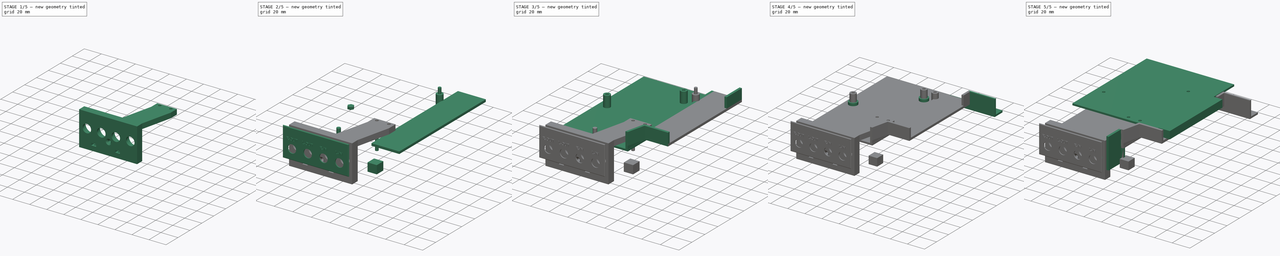
[diagram: build sequence overview — one tinted view per stage of 5, left to right]
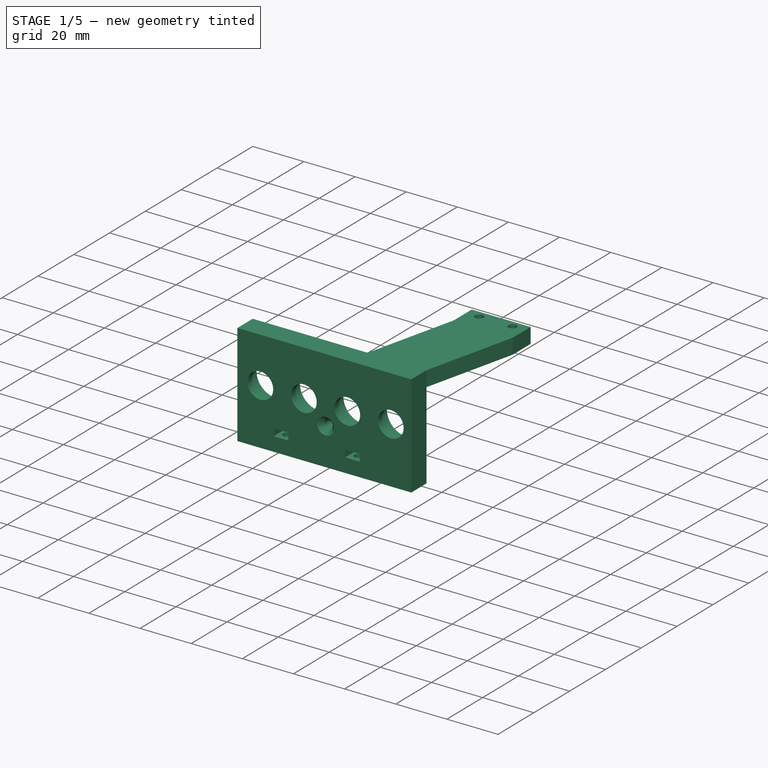
[diagram: stage 1 of 5 — iso view after this stage's code; geometry added in this stage tinted green]
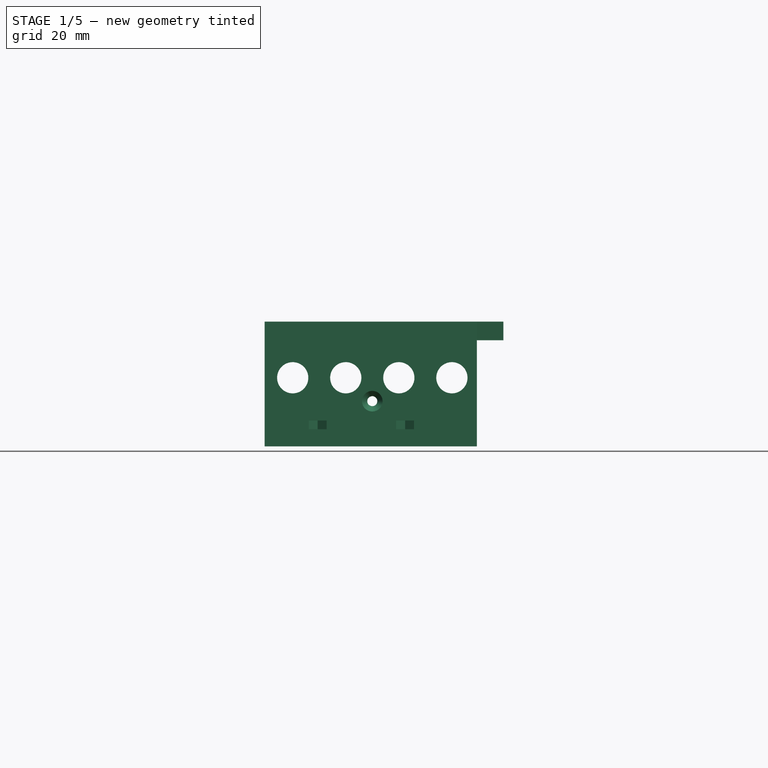
[diagram: stage 1 of 5 — front view after this stage's code; geometry added in this stage tinted green]
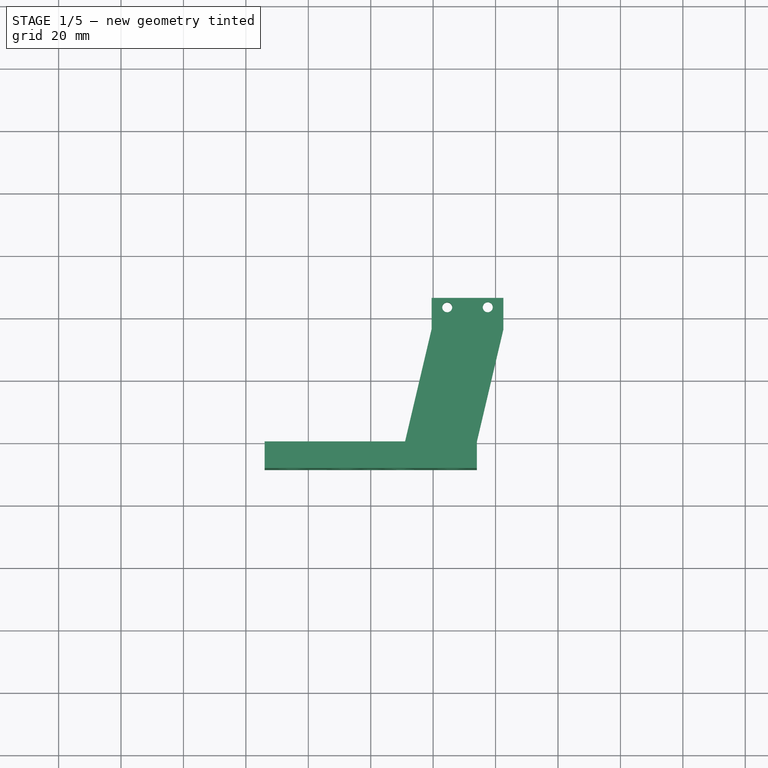
[diagram: stage 1 of 5 — top view after this stage's code; geometry added in this stage tinted green]
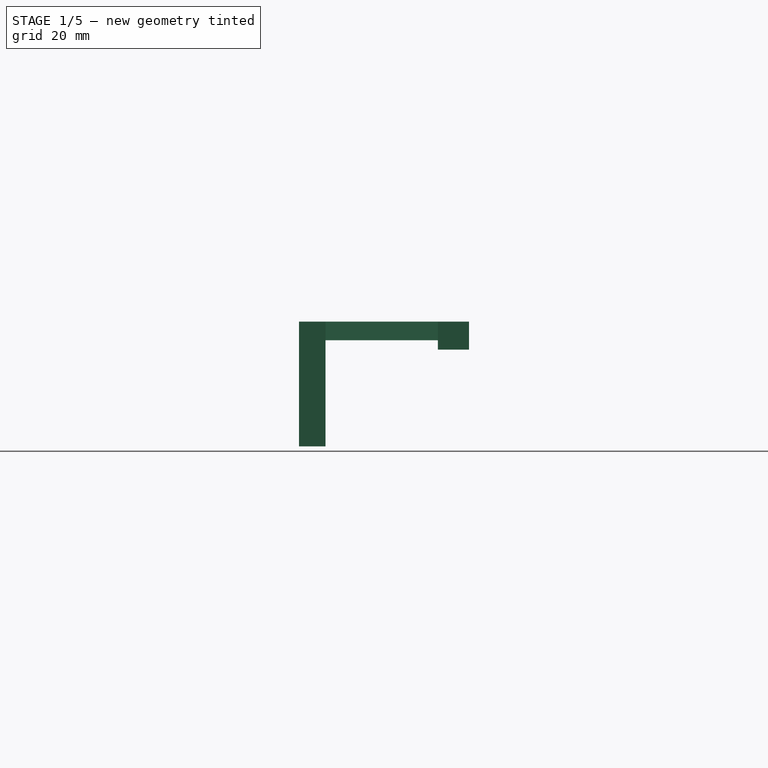
[diagram: stage 1 of 5 — right view after this stage's code; geometry added in this stage tinted green]
FCSTD DOCUMENT  (FreeCAD 0.16R6712 (Git))
Label: assembly
License: All rights reserved
LicenseURL: http://en.wikipedia.org/wiki/All_rights_reserved
objects: Part::Part2DObjectPython×19, Sketcher::SketchObject×18, Part::Cut×18, Part::Extrusion×15, PartDesign::Pad×11, Part::Cylinder×10, PartDesign::Pocket×7, Part::Fuse×7, Part::Box×6, Part::MultiFuse×3, Part::Chamfer×2, App::DocumentObjectGroup×1, PartDesign::Chamfer×1
note: 135 computed .brp shape members not serialized (recipe doc carries the construction recipe); baked Part::Feature solids carry a one-line shape summary decoded from their .brp

FEATURE [Sketcher::SketchObject] Sketch
  Placement = pos=(0,-8.5,0) rot=(1,0,0;1.5708rad)
  sketch-geometry (11):
    g0: LineSegment StartX=74 StartY=3.5 StartZ=0 EndX=74 EndY=43.5 EndZ=0
    g1: Circle CenterX=15 CenterY=25.5 CenterZ=0 NormalX=0 NormalY=0 NormalZ=1 Radius=5
    g2: Circle CenterX=32 CenterY=25.5 CenterZ=0 NormalX=0 NormalY=0 NormalZ=1 Radius=5
    g3: Circle CenterX=49 CenterY=25.5 CenterZ=0 NormalX=0 NormalY=0 NormalZ=1 Radius=5
    g4: Circle CenterX=66 CenterY=25.5 CenterZ=0 NormalX=0 NormalY=0 NormalZ=1 Radius=5
    g5: LineSegment [constr] StartX=15 StartY=25.5 StartZ=0 EndX=32 EndY=25.5 EndZ=0
    g6: LineSegment [constr] StartX=32 StartY=25.5 StartZ=0 EndX=49 EndY=25.5 EndZ=0
    g7: LineSegment [constr] StartX=49 StartY=25.5 StartZ=0 EndX=66 EndY=25.5 EndZ=0
    g8: LineSegment StartX=74 StartY=43.5 StartZ=0 EndX=6 EndY=43.5 EndZ=0
    g9: LineSegment StartX=6 StartY=43.5 StartZ=0 EndX=6 EndY=3.5 EndZ=0
    g10: LineSegment StartX=6 StartY=3.5 StartZ=0 EndX=74 EndY=3.5 EndZ=0
  constraints (29):
    c: Vertical(g0)
    c: Radius(g1) = 5
    c: Equal(g1,g2)
    c: Equal(g1,g3)
    c: Equal(g1,g4)
    c: Coincident(g5,g1)
    c: Coincident(g5,g2)
    c: Horizontal(g5)
    c: Coincident(g5,g6)
    c: Horizontal(g6)
    c: Coincident(g6,g7)
    c: Coincident(g7,g4)
    c: Horizontal(g7)
    c: Distance(g5) = 17
    c: Distance(g6) = 17
    c: Distance(g7) = 17
    c: DistanceY(g-1,g1) = 25.5
    c: DistanceX(g-1,g1) = 15
    c: Coincident(g8,g0)
    c: Horizontal(g8)
    c: Coincident(g8,g9)
    c: Vertical(g9)
    c: DistanceX(g-1,g9) = 6
    c: DistanceY(g-1,g9) = 3.5
    c: Coincident(g10,g9)
    c: Coincident(g10,g0)
    c: Horizontal(g10)
    c: Coincident(g3,g6)
    c: DistanceY(g-1,g8) = 43.5
FEATURE [PartDesign::Pad] Pad
  Length = 8.5
  Length2 = 100
  Placement = pos=(0,-8.5,0) rot=(1,0,0;1.5708rad)
  Reversed = true
  Sketch = -> Sketch
  Type = 0
FEATURE [Sketcher::SketchObject] Sketch001
  ExternalGeometry = -> [Pad]
  Placement = pos=(0,0,0) rot=(-1,0,0;1.5708rad)
  Support = -> Pad [Face10]
  sketch-geometry (4):
    g0: Circle CenterX=15 CenterY=-25.5 CenterZ=0 NormalX=0 NormalY=0 NormalZ=1 Radius=7.5
    g1: Circle CenterX=32 CenterY=-25.5 CenterZ=0 NormalX=0 NormalY=0 NormalZ=1 Radius=7.5
    g2: Circle CenterX=49 CenterY=-25.5 CenterZ=0 NormalX=0 NormalY=0 NormalZ=1 Radius=7.5
    g3: Circle CenterX=66 CenterY=-25.5 CenterZ=0 NormalX=0 NormalY=0 NormalZ=1 Radius=7.5
  constraints (8):
    c: Coincident(g0,g-3)
    c: Coincident(g1,g-4)
    c: Coincident(g2,g-5)
    c: Coincident(g3,g-6)
    c: Radius(g0) = 7.5
    c: Equal(g0,g1)
    c: Equal(g0,g2)
    c: Equal(g0,g3)
FEATURE [PartDesign::Pocket] Pocket
  Length = 6
  Placement = pos=(0,-8.5,0) rot=(1,0,0;1.5708rad)
  Sketch = -> Sketch001
  Type = 0
FEATURE [Sketcher::SketchObject] Sketch002
  Placement = pos=(0,-8.5,3.5) rot=(1,0,0;3.14159rad)
  Support = -> Pocket [Face2]
  sketch-geometry (3):
    g0: Circle CenterX=51 CenterY=-3.5 CenterZ=0 NormalX=0 NormalY=0 NormalZ=1 Radius=1.6
    g1: Circle CenterX=23 CenterY=-3.5 CenterZ=0 NormalX=0 NormalY=0 NormalZ=1 Radius=1.6
    g2: LineSegment [constr] StartX=23 StartY=-3.5 StartZ=0 EndX=51 EndY=-3.5 EndZ=0
  constraints (8):
    c: DistanceX(g0) = 51
    c: Radius(g0) = 1.6
    c: Radius(g1) = 1.6
    c: DistanceX(g1,g0) = 28
    c: Coincident(g2,g1)
    c: Coincident(g2,g0)
    c: Horizontal(g2)
    c: DistanceY(g1,g-1) = 3.5
FEATURE [PartDesign::Pocket] Pocket001
  Length = 10
  Placement = pos=(0,-8.5,0) rot=(1,0,0;1.5708rad)
  Sketch = -> Sketch002
  Type = 0
FEATURE [Part::Part2DObjectPython] Polygon001  # Draft 2D object (typed FeaturePython)
  ChamferSize = 0
  DrawMode = 0
  FacesNumber = 6
  FilletRadius = 0
  MakeFace = true
  Placement = pos=(9.76616,-38.7357,0) rot=(0,0,1;0.523599rad)
  Radius = 3.3
FEATURE [Part::Part2DObjectPython] Rectangle001  # Draft 2D object (typed FeaturePython)
  ChamferSize = 0
  Columns = 1
  FilletRadius = 0
  Height = -5
  Length = 5.71577
  MakeFace = true
  Placement = pos=(6.90828,-40.3857,0) rot=(0,0,1;0rad)
  Rows = 1
FEATURE [Part::Part2DObjectPython] Fusion001  # Draft 2D object (typed FeaturePython)
  Base = -> Rectangle001
  ChamferSize = 0
  Closed = false
  End = (12.624,-37.0857,0)
  FilletRadius = 0
  Length = 0
  MakeFace = true
  Points = (7) [(12.624,-40.3857,0),(12.624,-45.3857,0),(6.90828,-45.3857,0),(6.90828,-40.3857,0),(6.90828,-37.0857,0),(9.76616,-35.4357,0),(12.624,-37.0857,0)]
  Start = (12.624,-40.3857,0)
  Subdivisions = 0
  Tool = -> Polygon001
FEATURE [Part::Extrusion] Extrude001
  Base = -> Fusion001
  Dir = (0,0,2.8)
  Placement = pos=(41.2338,33.7357,9) rot=(0,0,1;0rad)
  Solid = false
FEATURE [Part::Cut] Cut
  Base = -> Pocket001
  Tool = -> Extrude001
FEATURE [Part::Part2DObjectPython] Polygon  # Draft 2D object (typed FeaturePython)
  ChamferSize = 0
  DrawMode = 0
  FacesNumber = 6
  FilletRadius = 0
  MakeFace = true
  Placement = pos=(9.76616,-38.7357,0) rot=(0,0,1;0.523599rad)
  Radius = 3.3
FEATURE [Part::Part2DObjectPython] Rectangle  # Draft 2D object (typed FeaturePython)
  ChamferSize = 0
  Columns = 1
  FilletRadius = 0
  Height = -5
  Length = 5.71577
  MakeFace = true
  Placement = pos=(6.90828,-40.3857,0) rot=(0,0,1;0rad)
  Rows = 1
FEATURE [Part::Part2DObjectPython] Fusion  # Draft 2D object (typed FeaturePython)
  Base = -> Rectangle
  ChamferSize = 0
  Closed = false
  End = (12.624,-37.0857,0)
  FilletRadius = 0
  Length = 0
  MakeFace = true
  Points = (7) [(12.624,-40.3857,0),(12.624,-45.3857,0),(6.90828,-45.3857,0),(6.90828,-40.3857,0),(6.90828,-37.0857,0),(9.76616,-35.4357,0),(12.624,-37.0857,0)]
  Start = (12.624,-40.3857,0)
  Subdivisions = 0
  Tool = -> Polygon
FEATURE [Part::Extrusion] Extrude
  Base = -> Fusion
  Dir = (0,0,2.8)
  Placement = pos=(13.2338,33.7357,9) rot=(0,0,1;0rad)
  Solid = false
FEATURE [Part::Cut] Cut001
  Base = -> Cut
  Tool = -> Extrude
FEATURE [Sketcher::SketchObject] Sketch003
  ExternalGeometry = -> [Cut001]
  Placement = pos=(0,0,43.5) rot=(0,0,1;0rad)
  Support = -> Cut001 [Face3]
  sketch-geometry (9):
    g0: Circle CenterX=64.5 CenterY=43 CenterZ=0 NormalX=0 NormalY=0 NormalZ=1 Radius=1.6
    g1: Circle CenterX=77.5 CenterY=43 CenterZ=0 NormalX=0 NormalY=0 NormalZ=1 Radius=1.6
    g2: LineSegment [constr] StartX=64.5 StartY=43 StartZ=0 EndX=77.5 EndY=43 EndZ=0
    g3: LineSegment StartX=74 StartY=0 StartZ=0 EndX=82.5 EndY=36 EndZ=0
    g4: LineSegment StartX=82.5 StartY=36 StartZ=0 EndX=82.5 EndY=46 EndZ=0
    g5: LineSegment StartX=82.5 StartY=46 StartZ=0 EndX=59.5 EndY=46 EndZ=0
    g6: LineSegment StartX=59.5 StartY=46 StartZ=0 EndX=59.5 EndY=36 EndZ=0
    g7: LineSegment StartX=59.5 StartY=36 StartZ=0 EndX=51 EndY=0 EndZ=0
    g8: LineSegment StartX=51 StartY=0 StartZ=0 EndX=74 EndY=0 EndZ=0
  constraints (25):
    c: DistanceX(g0) = 64.5
    c: DistanceY(g0) = 43
    c: Radius(g0) = 1.6
    c: Radius(g1) = 1.6
    c: Coincident(g2,g0)
    c: Coincident(g2,g1)
    c: Horizontal(g2)
    c: Distance(g2) = 13
    c: Coincident(g-3,g3)
    c: Coincident(g3,g4)
    c: Vertical(g4)
    c: Coincident(g4,g5)
    c: Horizontal(g5)
    c: Coincident(g5,g6)
    c: Vertical(g6)
    c: Coincident(g6,g7)
    c: PointOnObject(g7,g-3)
    c: DistanceY(g0,g5) = 3
    c: DistanceX(g5,g0) = 5
    c: DistanceX(g1,g4) = 5
    c: Parallel(g7,g3)
    c: DistanceY(g3,g1) = 7
    c: DistanceY(g6,g1) = 7
    c: Coincident(g8,g7)
    c: Coincident(g8,g3)
FEATURE [PartDesign::Pad] Pad001
  Length = 6
  Length2 = 100
  Reversed = true
  Sketch = -> Sketch003
  Type = 0
FEATURE [Sketcher::SketchObject] Sketch004
  ExternalGeometry = -> [Pad001]
  Placement = pos=(0,0,37.5) rot=(1,0,0;3.14159rad)
  Support = -> Pad001 [Face5]
  sketch-geometry (5):
    g0: LineSegment StartX=59.5 StartY=-36 StartZ=0 EndX=71 EndY=-36 EndZ=0
    g1: LineSegment StartX=71 StartY=-36 StartZ=0 EndX=71 EndY=-46 EndZ=0
    g2: LineSegment StartX=71 StartY=-46 StartZ=0 EndX=59.5 EndY=-46 EndZ=0
    g3: LineSegment StartX=59.5 StartY=-46 StartZ=0 EndX=59.5 EndY=-36 EndZ=0
    g4: Circle CenterX=64.5 CenterY=-43 CenterZ=0 NormalX=0 NormalY=0 NormalZ=1 Radius=1.6
  constraints (13):
    c: Coincident(g0,g1)
    c: Coincident(g1,g2)
    c: Coincident(g2,g3)
    c: Coincident(g3,g0)
    c: Horizontal(g0)
    c: Horizontal(g2)
    c: Vertical(g1)
    c: Vertical(g3)
    c: Coincident(g0,g-4)
    c: PointOnObject(g1,g-5)
    c: DistanceX(g-3,g0) = 6.5
    c: Coincident(g4,g-3)
    c: Radius(g4) = 1.6
FEATURE [PartDesign::Pad] Pad002  label="Cinch Holder before hole"
  Length = 3
  Length2 = 100
  Sketch = -> Sketch004
  Type = 0
FEATURE [Sketcher::SketchObject] Sketch015
  ExternalGeometry = -> [Pad002]
  Placement = pos=(71,0,0) rot=(0.57735,0.57735,0.57735;2.0944rad)
  Support = -> Pad002 [Face15]
  sketch-geometry (2):
    g0: LineSegment [constr] StartX=-51.5015 StartY=14 StartZ=0 EndX=-34.0831 EndY=14 EndZ=0
    g1: Circle CenterX=-40.5 CenterY=18 CenterZ=0 NormalX=0 NormalY=0 NormalZ=1 Radius=1.46027
  constraints (4):
    c: Horizontal(g0)
    c: DistanceX(g0) = -51.5015
    c: DistanceY(g0) = 14
    c: DistanceY(g0,g1) = 4
FEATURE [PartDesign::Pocket] Pocket006  label="cinch holder"
  Length = 20
  Sketch = -> Sketch015
  Type = 0
FEATURE [Part::Cylinder] Cylinder008  label="Válec001"
  Angle = 360
  Height = 40
  Placement = pos=(40.5,25,18) rot=(1,0,0;1.5708rad)
  Radius = 1.6
FEATURE [Part::Chamfer] Chamfer  label="Chamfer - wrong, minimized"
  Base = -> Pocket006
  Edges = 1 edges r=0.01: [Edge58]
FEATURE [Part::Part2DObjectPython] Polygon009  # Draft 2D object (typed FeaturePython)
  ChamferSize = 0
  DrawMode = 0
  FacesNumber = 6
  FilletRadius = 0
  MakeFace = true
  Placement = pos=(77.5,43,37.5) rot=(1,0,0;3.14159rad)
  Radius = 3.25
  Support = -> Chamfer
FEATURE [Part::Extrusion] Extrude011
  Base = -> Polygon009
  Dir = (0,0,2.8)
  Solid = false
FEATURE [Part::Cut] Cut017  label="Cinch Holder"
  Base = -> Chamfer
  Tool = -> Extrude011
FEATURE [Part::Cut] Cut018
  Base = -> Cut017
  Tool = -> Cylinder008
FEATURE [Part::Chamfer] Chamfer002  label="cinch holder001"
  Base = -> Cut018
  Edges = 1 edges r=1.7: [Edge12]
note: 4 file-system paths scrubbed to <path> (originals preserved in the JSON sidecar)
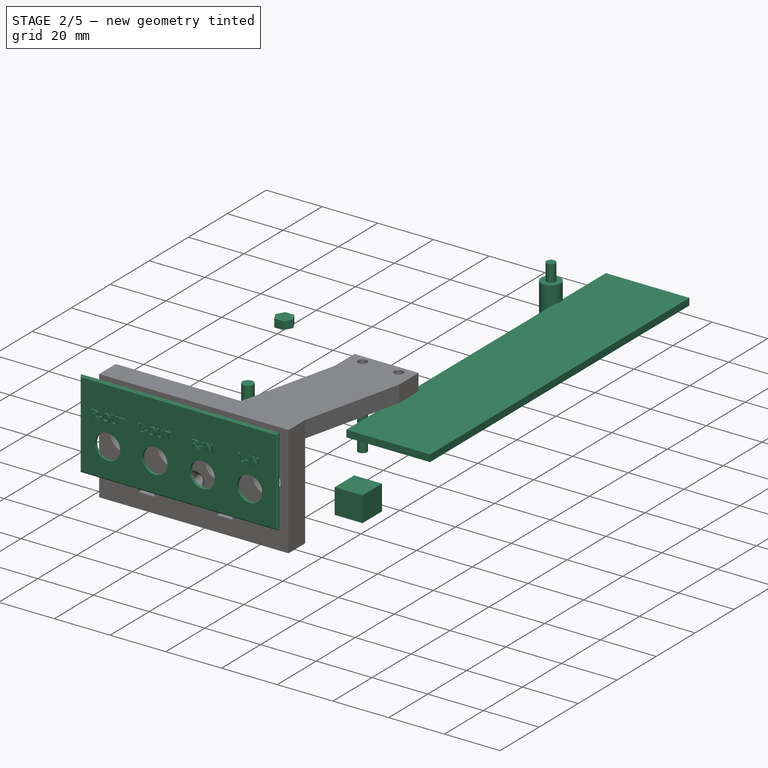
[diagram: stage 2 of 5 — iso view after this stage's code; geometry added in this stage tinted green]
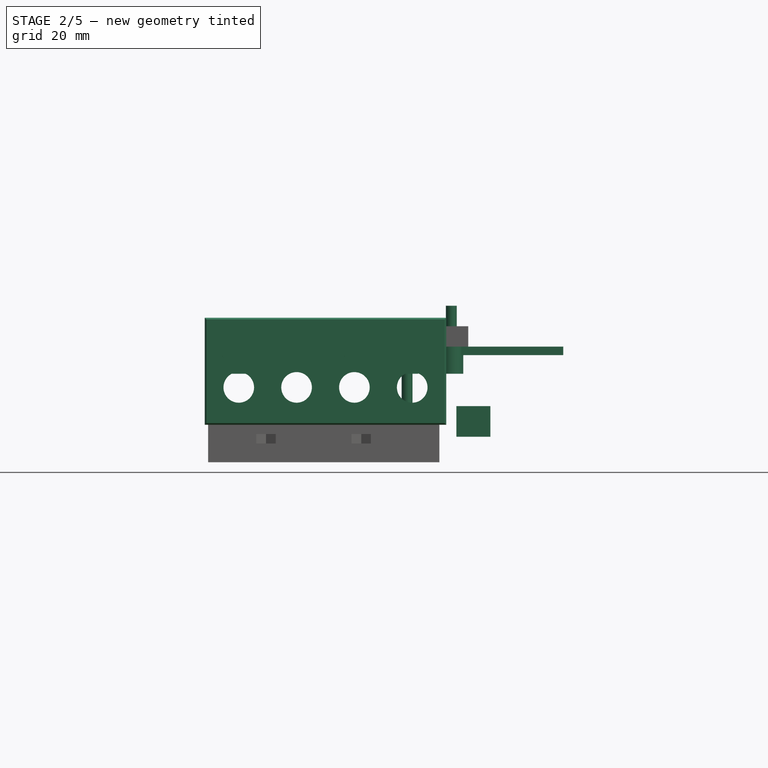
[diagram: stage 2 of 5 — front view after this stage's code; geometry added in this stage tinted green]
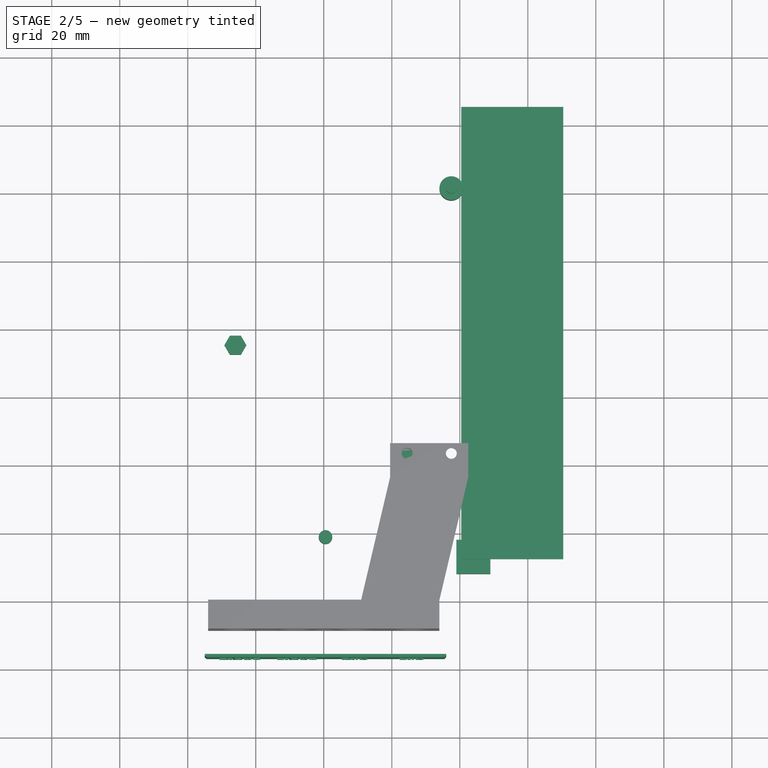
[diagram: stage 2 of 5 — top view after this stage's code; geometry added in this stage tinted green]
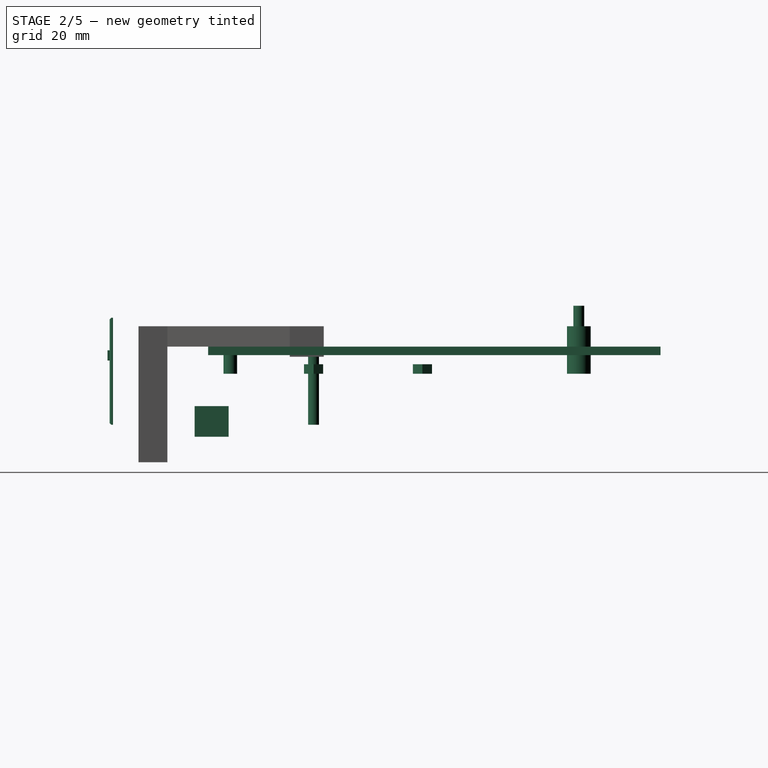
[diagram: stage 2 of 5 — right view after this stage's code; geometry added in this stage tinted green]
FEATURE [Part::Box] Box003  label="Cube001"
  Height = 2.5
  Length = 30
  Placement = pos=(80.4131,11.999,35) rot=(0,0,1;0rad)
  Width = 133
FEATURE [Part::Cylinder] Cylinder004
  Angle = 360
  Height = 20
  Placement = pos=(64.5,43,14.5) rot=(0,0,1;0rad)
  Radius = 1.6
FEATURE [Part::Part2DObjectPython] Polygon003  # Draft 2D object (typed FeaturePython)
  ChamferSize = 0
  DrawMode = 0
  FacesNumber = 6
  FilletRadius = 0
  MakeFace = true
  Placement = pos=(14,75,29.5) rot=(0,0,1;0rad)
  Radius = 3.25
FEATURE [Part::Extrusion] Extrude002
  Base = -> Polygon003
  Dir = (0,0,2.8)
  Solid = false
FEATURE [Part::Part2DObjectPython] Polygon004  # Draft 2D object (typed FeaturePython)
  ChamferSize = 0
  DrawMode = 0
  FacesNumber = 6
  FilletRadius = 0
  MakeFace = true
  Placement = pos=(64.5,43,29.5) rot=(0,0,1;0rad)
  Radius = 3.25
FEATURE [Part::Part2DObjectPython] Polygon005  # Draft 2D object (typed FeaturePython)
  ChamferSize = 0
  DrawMode = 0
  FacesNumber = 6
  FilletRadius = 0
  MakeFace = true
  Placement = pos=(64.5,121,29.5) rot=(0,0,1;0rad)
  Radius = 3.25
  Support = -> Polygon004
FEATURE [Part::Extrusion] Extrude003
  Base = -> Polygon004
  Dir = (0,0,2.8)
  Solid = false
FEATURE [Part::Cylinder] Cylinder005
  Angle = 360
  Height = 14
  Placement = pos=(77.5,121,29.5) rot=(0,0,1;0rad)
  Radius = 3.5
FEATURE [Part::Cylinder] Cylinder006
  Angle = 360
  Height = 20
  Placement = pos=(77.5,121,29.5) rot=(0,0,1;0rad)
  Radius = 1.6
FEATURE [Part::Part2DObjectPython] Polygon006  # Draft 2D object (typed FeaturePython)
  ChamferSize = 0
  DrawMode = 0
  FacesNumber = 6
  FilletRadius = 0
  MakeFace = true
  Placement = pos=(77.5,121,29.5) rot=(0,0,1;0rad)
  Radius = 3.25
FEATURE [Part::Extrusion] Extrude008
  Base = -> Polygon006
  Dir = (0,0,2.8)
  Solid = false
FEATURE [Part::Cylinder] Cylinder009  label="Válec002"
  Angle = 360
  Height = 10
  Placement = pos=(40.5,18.5,29.5) rot=(0,0,1;0rad)
  Radius = 2
FEATURE [Sketcher::SketchObject] Sketch017
  Placement = pos=(0,-16,0) rot=(1,0,0;1.5708rad)
  sketch-geometry (11):
    g0: Circle CenterX=15 CenterY=25.5 CenterZ=0 NormalX=0 NormalY=0 NormalZ=1 Radius=4.5
    g1: Circle CenterX=32 CenterY=25.5 CenterZ=0 NormalX=0 NormalY=0 NormalZ=1 Radius=4.5
    g2: Circle CenterX=49 CenterY=25.5 CenterZ=0 NormalX=0 NormalY=0 NormalZ=1 Radius=4.5
    g3: Circle CenterX=66 CenterY=25.5 CenterZ=0 NormalX=0 NormalY=0 NormalZ=1 Radius=4.5
    g4: LineSegment StartX=5 StartY=46 StartZ=0 EndX=76 EndY=46 EndZ=0
    g5: LineSegment StartX=76 StartY=46 StartZ=0 EndX=76 EndY=14.5 EndZ=0
    g6: LineSegment StartX=76 StartY=14.5 StartZ=0 EndX=5 EndY=14.5 EndZ=0
    g7: LineSegment StartX=5 StartY=14.5 StartZ=0 EndX=5 EndY=46 EndZ=0
    g8: LineSegment [constr] StartX=15 StartY=25.5 StartZ=0 EndX=32 EndY=25.5 EndZ=0
    g9: LineSegment [constr] StartX=32 StartY=25.5 StartZ=0 EndX=49 EndY=25.5 EndZ=0
    g10: LineSegment [constr] StartX=49 StartY=25.5 StartZ=0 EndX=66 EndY=25.5 EndZ=0
  constraints (30):
    c: Radius(g0) = 4.5
    c: Equal(g0,g1)
    c: Equal(g0,g2)
    c: Equal(g0,g3)
    c: Coincident(g4,g5)
    c: Coincident(g5,g6)
    c: Coincident(g6,g7)
    c: Coincident(g7,g4)
    c: Horizontal(g4)
    c: Horizontal(g6)
    c: Vertical(g5)
    c: Vertical(g7)
    c: DistanceX(g6) = 5
    c: DistanceY(g6) = 14.5
    c: DistanceX(g3,g4) = 10
    c: Coincident(g8,g0)
    c: Coincident(g8,g1)
    c: Horizontal(g8)
    c: Coincident(g9,g1)
    c: Coincident(g9,g2)
    c: Horizontal(g9)
    c: Coincident(g10,g2)
    c: Coincident(g10,g3)
    c: Horizontal(g10)
    c: DistanceX(g0) = 15
    c: DistanceY(g0) = 25.5
    c: DistanceX(g0,g1) = 17
    c: DistanceX(g1,g2) = 17
    c: DistanceX(g2,g3) = 17
    c: DistanceY(g-1,g4) = 46
FEATURE [PartDesign::Pad] Pad010
  Length = 1
  Length2 = 100
  Placement = pos=(0,-16,0) rot=(1,0,0;1.5708rad)
  Sketch = -> Sketch017
  Type = 0
FEATURE [PartDesign::Chamfer] Chamfer001
  Base = -> Pad010 [Edge4,Edge12,Edge10,Edge7]
  Placement = pos=(0,-16,0) rot=(1,0,0;1.5708rad)
  Size = 0.5
FEATURE [Part::Part2DObjectPython] ShapeString  # Draft 2D object (typed FeaturePython)
  FontFile = <path>
  Placement = pos=(9,-17,33.5) rot=(1,0,0;1.5708rad)
  Size = 3
  String = R-OUT
  Tracking = 0
FEATURE [Part::Extrusion] Extrude012  label="R-OUT"
  Base = -> ShapeString
  Dir = (0,-0.6,0)
  Solid = false
FEATURE [Part::Part2DObjectPython] ShapeString001  # Draft 2D object (typed FeaturePython)
  FontFile = <path>
  Placement = pos=(26,-17,33.5) rot=(1,0,0;1.5708rad)
  Size = 3
  String = L-OUT
  Tracking = 0
FEATURE [Part::Extrusion] Extrude013  label="L-OUT"
  Base = -> ShapeString001
  Dir = (0,-0.6,0)
  Solid = false
FEATURE [Part::Part2DObjectPython] ShapeString002  # Draft 2D object (typed FeaturePython)
  FontFile = <path>
  Placement = pos=(45,-17,33.5) rot=(1,0,0;1.5708rad)
  Size = 3
  String = R-IN
  Tracking = 0
FEATURE [Part::Extrusion] Extrude014  label="R-IN"
  Base = -> ShapeString002
  Dir = (0,-0.6,0)
  Solid = false
FEATURE [Part::Part2DObjectPython] ShapeString003  # Draft 2D object (typed FeaturePython)
  FontFile = <path>
  Placement = pos=(62,-17,33.5) rot=(1,0,0;1.5708rad)
  Size = 3
  String = L-IN
  Tracking = 0
FEATURE [Part::Extrusion] Extrude015  label="L-IN"
  Base = -> ShapeString003
  Dir = (0,-0.6,0)
  Solid = false
FEATURE [Part::MultiFuse] Fusion012  label="front plate"
  Shapes = -> [Chamfer001,Extrude012,Extrude013,Extrude014,Extrude015]
FEATURE [Part::Box] Box005  label="PCI-e slot"
  Height = 9
  Length = 10
  Placement = pos=(79,8,11) rot=(0,0,1;0rad)
  Width = 10
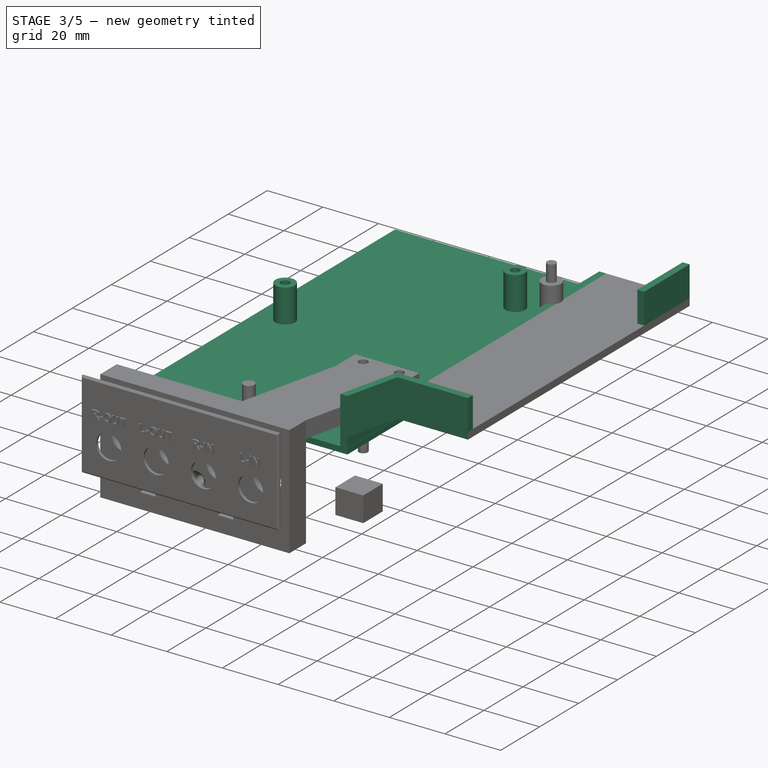
[diagram: stage 3 of 5 — iso view after this stage's code; geometry added in this stage tinted green]
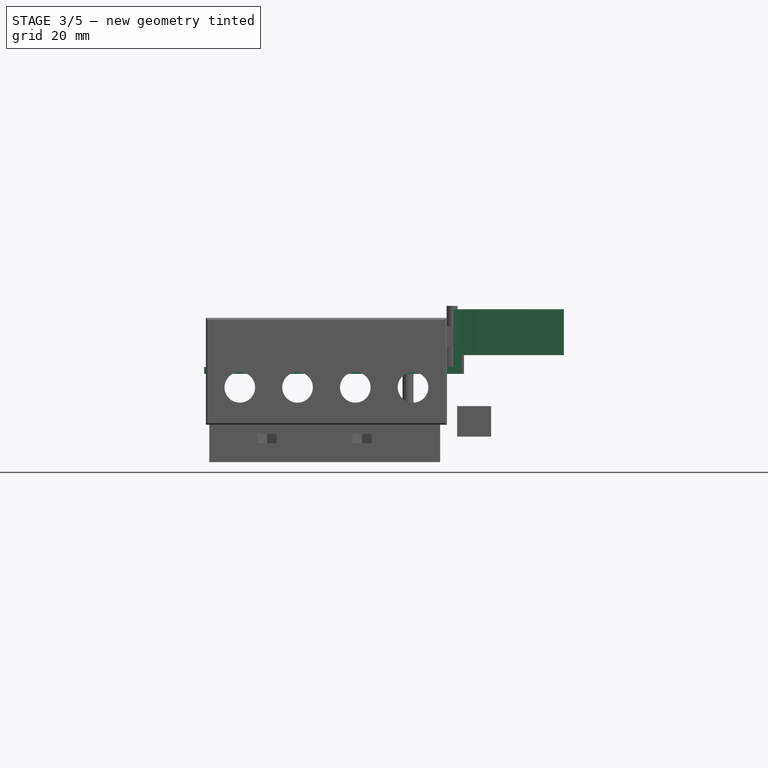
[diagram: stage 3 of 5 — front view after this stage's code; geometry added in this stage tinted green]
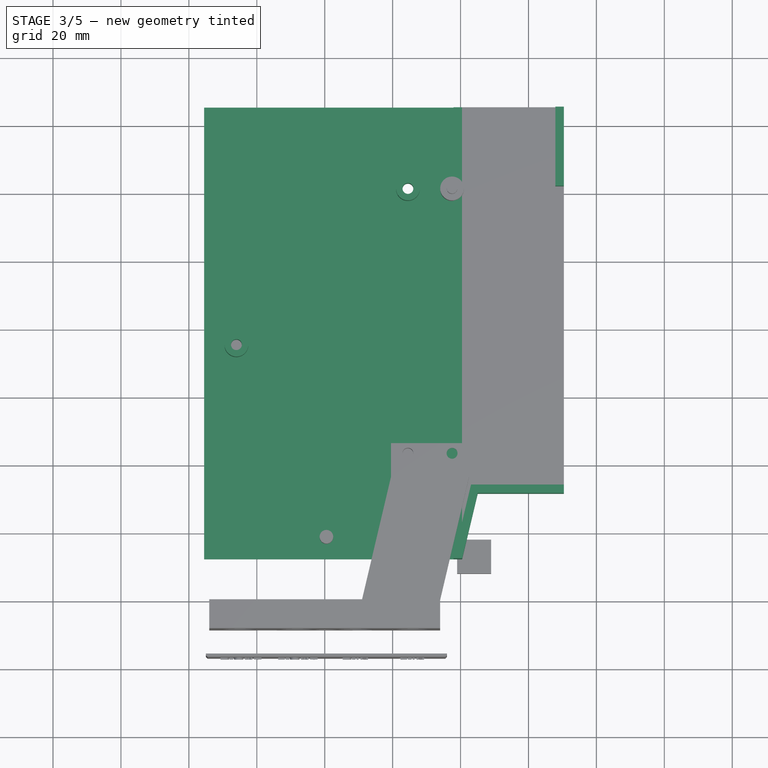
[diagram: stage 3 of 5 — top view after this stage's code; geometry added in this stage tinted green]
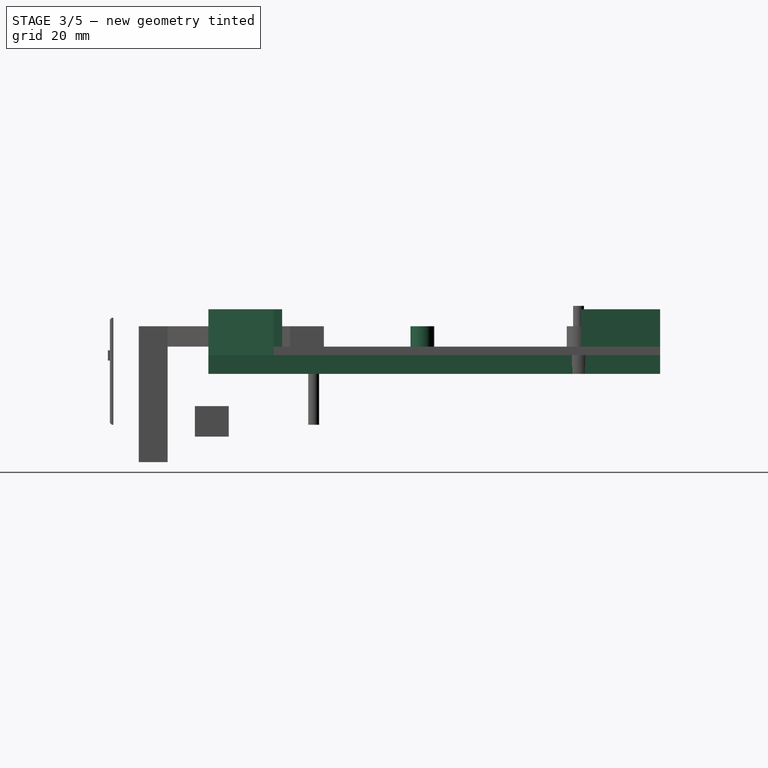
[diagram: stage 3 of 5 — right view after this stage's code; geometry added in this stage tinted green]
FEATURE [Part::Box] Box001  label="shield"
  Height = 2
  Length = 76
  Placement = pos=(4.5,12,29.5) rot=(0,0,1;0rad)
  Width = 133
FEATURE [Sketcher::SketchObject] Sketch006
  Placement = pos=(4.5,12,31.5) rot=(0,0,1;0rad)
  Support = -> Box001 [Face6]
  sketch-geometry (3):
    g0: Circle CenterX=60 CenterY=31 CenterZ=0 NormalX=0 NormalY=0 NormalZ=1 Radius=1.6
    g1: LineSegment [constr] StartX=60 StartY=31 StartZ=0 EndX=73 EndY=31 EndZ=0
    g2: Circle CenterX=9.5 CenterY=63 CenterZ=0 NormalX=0 NormalY=0 NormalZ=1 Radius=1.6
  constraints (9):
    c: Radius(g0) = 1.6
    c: DistanceY(g-1,g0) = 31
    c: Coincident(g1,g0)
    c: Horizontal(g1)
    c: Distance(g1) = 13
    c: DistanceX(g-1,g0) = 60
    c: Radius(g2) = 1.6
    c: DistanceX(g-1,g2) = 9.5
    c: DistanceY(g-1,g2) = 63
FEATURE [PartDesign::Pocket] Pocket003
  Length = 30
  Midplane = true
  Placement = pos=(4.5,12,29.5) rot=(0,0,1;0rad)
  Sketch = -> Sketch006
  Type = 0
FEATURE [Part::Cylinder] Cylinder
  Angle = 360
  Height = 12
  Placement = pos=(14,75,31.5) rot=(0,0,1;0rad)
  Radius = 3.5
FEATURE [Part::Fuse] Fusion002
  Base = -> Pocket003
  Tool = -> Cylinder
FEATURE [Part::Cylinder] Cylinder001
  Angle = 360
  Height = 20
  Placement = pos=(14,75,26.4514) rot=(0,0,1;0rad)
  Radius = 1.6
FEATURE [Part::Cut] Cut002
  Base = -> Fusion002
  Tool = -> Cylinder001
FEATURE [Part::Cylinder] Cylinder002
  Angle = 360
  Height = 12
  Placement = pos=(64.5,121,31.5) rot=(0,0,1;0rad)
  Radius = 3.5
FEATURE [Part::Cylinder] Cylinder003
  Angle = 360
  Height = 20
  Placement = pos=(64.5,121,25.5) rot=(0,0,1;0rad)
  Radius = 1.6
FEATURE [Part::Fuse] Fusion003
  Base = -> Cut002
  Tool = -> Cylinder002
FEATURE [Part::Cut] Cut003
  Base = -> Fusion003
  Tool = -> Cylinder003
FEATURE [Part::Box] Box002  label="Cube"
  Height = 6
  Length = 2.5
  Placement = pos=(77.9131,11.999,31.5) rot=(0,0,1;0rad)
  Width = 133
FEATURE [Part::Fuse] Fusion005
  Base = -> Cut003
  Tool = -> Box002
FEATURE [Part::Fuse] Fusion006
  Base = -> Fusion005
  Tool = -> Box003
FEATURE [Sketcher::SketchObject] Sketch007
  ExternalGeometry = -> [Fusion006]
  Placement = pos=(0,0,37.5) rot=(0,0,1;0rad)
  Support = -> Fusion006 [Face3]
  sketch-geometry (8):
    g0: LineSegment StartX=110.413 StartY=33.7033 StartZ=0 EndX=83.0804 EndY=33.7033 EndZ=0
    g1: LineSegment StartX=83.0804 StartY=33.7033 StartZ=0 EndX=77.9128 EndY=11.9978 EndZ=0
    g2: LineSegment StartX=77.9128 StartY=11.9978 StartZ=0 EndX=80.4827 EndY=11.9978 EndZ=0
    g3: LineSegment StartX=80.4827 StartY=11.9978 StartZ=0 EndX=85.0551 EndY=31.2033 EndZ=0
    g4: LineSegment StartX=85.0551 StartY=31.2033 StartZ=0 EndX=110.413 EndY=31.2033 EndZ=0
    g5: LineSegment StartX=110.413 StartY=31.2033 StartZ=0 EndX=110.413 EndY=33.7033 EndZ=0
    g6: LineSegment [constr] StartX=82.3424 StartY=34.9212 StartZ=0 EndX=75.8051 EndY=7.46257 EndZ=0
    g7: GeomPoint [constr] X=103.454 Y=35.7033 Z=0
  constraints (21):
    c: PointOnObject(g0,g-4)
    c: Horizontal(g0)
    c: Coincident(g0,g1)
    c: Coincident(g2,g3)
    c: Coincident(g3,g4)
    c: PointOnObject(g4,g-4)
    c: Horizontal(g4)
    c: Coincident(g4,g5)
    c: Coincident(g5,g0)
    c: Horizontal(g2)
    c: Parallel(g1,g6)
    c: Distance(g7,g0) = 2
    c: Distance(g0,g4) = 2.5
    c: Distance(g1,g3) = 2.5
    c: Parallel(g1,g3)
    c: DistanceX(g6) = 82.3424
    c: DistanceY(g6) = 34.9212
    c: DistanceX(g6) = 75.8051
    c: DistanceY(g6) = 7.46257
    c: Distance(g0,g6) = 1
    c: Coincident(g1,g2)
FEATURE [PartDesign::Pad] Pad003
  Length = 11
  Length2 = 100
  Sketch = -> Sketch007
  Type = 0
FEATURE [Sketcher::SketchObject] Sketch008
  ExternalGeometry = -> [Pad003]
  Placement = pos=(0,0,37.5) rot=(0,0,1;0rad)
  Support = -> Pad003 [Face11]
  sketch-geometry (4):
    g0: LineSegment StartX=80.483 StartY=11.999 StartZ=0 EndX=85.0551 EndY=31.2033 EndZ=0
    g1: LineSegment StartX=85.0551 StartY=31.2033 StartZ=0 EndX=110.413 EndY=31.2033 EndZ=0
    g2: LineSegment StartX=110.413 StartY=31.2033 StartZ=0 EndX=110.413 EndY=11.999 EndZ=0
    g3: LineSegment StartX=110.413 StartY=11.999 StartZ=0 EndX=80.483 EndY=11.999 EndZ=0
  constraints (8):
    c: Coincident(g-6,g0)
    c: Coincident(g0,g-4)
    c: Coincident(g0,g1)
    c: Coincident(g1,g-5)
    c: Coincident(g1,g2)
    c: Coincident(g2,g-6)
    c: Coincident(g2,g3)
    c: Coincident(g3,g0)
FEATURE [PartDesign::Pocket] Pocket004
  Length = 5
  Sketch = -> Sketch008
  Type = 0
FEATURE [Sketcher::SketchObject] Sketch009
  ExternalGeometry = -> [Pocket004]
  Placement = pos=(0,0,37.5) rot=(0,0,1;0rad)
  Support = -> Pocket004 [Face8]
  sketch-geometry (6):
    g0: GeomPoint [constr] X=103.562 Y=142.512 Z=0
    g1: GeomPoint [constr] X=107.735 Y=120.718 Z=0
    g2: LineSegment StartX=110.413 StartY=144.999 StartZ=0 EndX=110.413 EndY=121.718 EndZ=0
    g3: LineSegment StartX=110.413 StartY=121.718 StartZ=0 EndX=107.913 EndY=121.718 EndZ=0
    g4: LineSegment StartX=107.913 StartY=121.718 StartZ=0 EndX=107.913 EndY=144.999 EndZ=0
    g5: LineSegment StartX=107.913 StartY=144.999 StartZ=0 EndX=110.413 EndY=144.999 EndZ=0
  constraints (12):
    c: PointOnObject(g2,g-3)
    c: Vertical(g2)
    c: Coincident(g2,g3)
    c: Horizontal(g3)
    c: Coincident(g3,g4)
    c: Vertical(g4)
    c: Coincident(g5,g4)
    c: Coincident(g5,g2)
    c: Horizontal(g5)
    c: Coincident(g2,g-4)
    c: Distance(g1,g3) = 1
    c: Distance(g2,g4) = 2.5
FEATURE [PartDesign::Pad] Pad004
  Length = 11
  Length2 = 100
  Sketch = -> Sketch009
  Type = 0
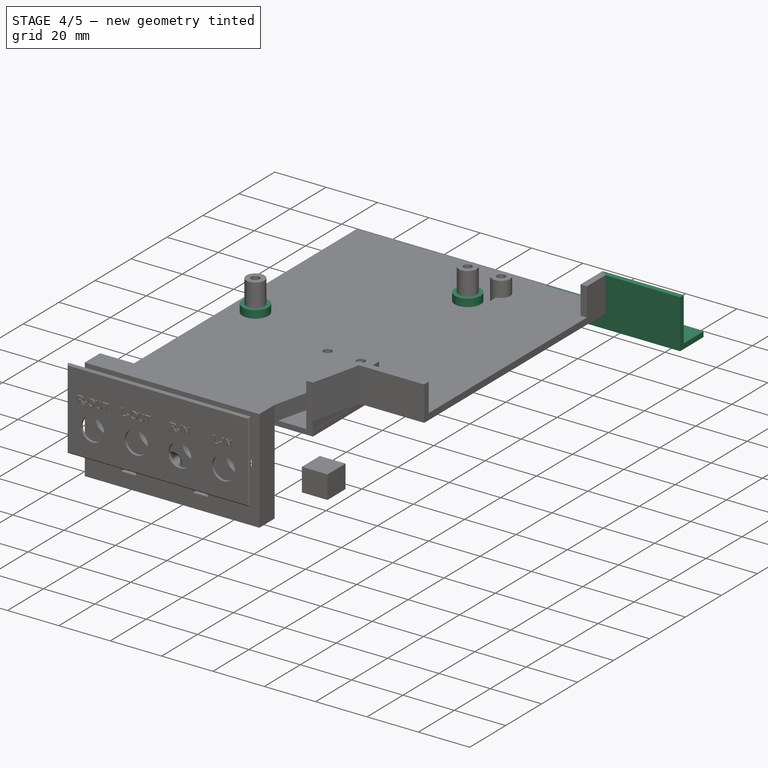
[diagram: stage 4 of 5 — iso view after this stage's code; geometry added in this stage tinted green]
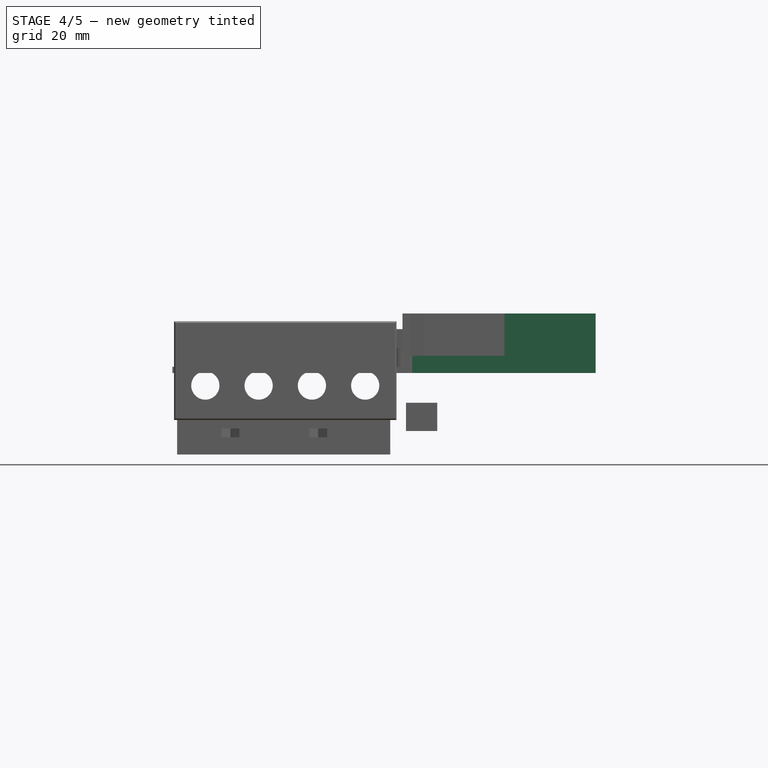
[diagram: stage 4 of 5 — front view after this stage's code; geometry added in this stage tinted green]
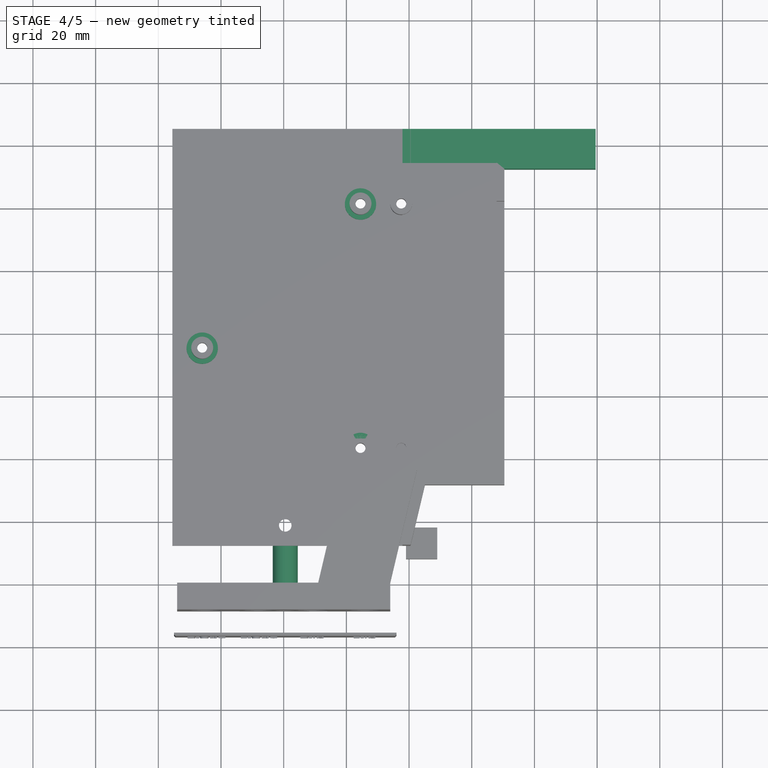
[diagram: stage 4 of 5 — top view after this stage's code; geometry added in this stage tinted green]
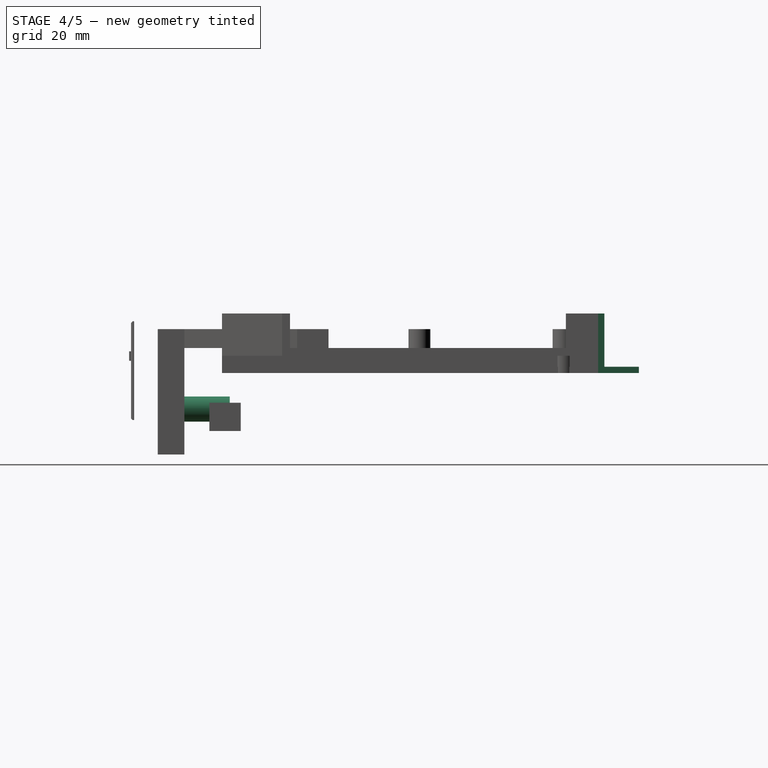
[diagram: stage 4 of 5 — right view after this stage's code; geometry added in this stage tinted green]
FEATURE [Sketcher::SketchObject] Sketch010
  ExternalGeometry = -> [Pad004]
  Placement = pos=(0,0,29.5) rot=(1,0,0;3.14159rad)
  Support = -> Pad004 [Face35]
  sketch-geometry (3):
    g0: Circle CenterX=14 CenterY=-75 CenterZ=0 NormalX=0 NormalY=0 NormalZ=1 Radius=5
    g1: Circle CenterX=64.5 CenterY=-43 CenterZ=0 NormalX=0 NormalY=0 NormalZ=1 Radius=5
    g2: Circle CenterX=64.5 CenterY=-121 CenterZ=0 NormalX=0 NormalY=0 NormalZ=1 Radius=5
  constraints (6):
    c: Coincident(g0,g-4)
    c: Coincident(g1,g-3)
    c: Coincident(g2,g-5)
    c: Radius(g0) = 5
    c: Equal(g0,g1)
    c: Equal(g0,g2)
FEATURE [PartDesign::Pad] Pad005
  Length = 5
  Length2 = 100
  Reversed = true
  Sketch = -> Sketch010
  Type = 0
FEATURE [Part::Cut] Cut004
  Base = -> Pad005
  Tool = -> Cylinder003
FEATURE [Part::Cut] Cut005
  Base = -> Cut004
  Tool = -> Cylinder001
FEATURE [Part::Cut] Cut006
  Base = -> Cut005
  Tool = -> Cylinder004
FEATURE [Part::Cut] Cut007
  Base = -> Cut006
  Tool = -> Extrude002
FEATURE [Part::Extrusion] Extrude004
  Base = -> Polygon005
  Dir = (0,0,2.8)
  Solid = false
FEATURE [Part::Cut] Cut008
  Base = -> Cut007
  Tool = -> Extrude003
FEATURE [Part::Cut] Cut009  label="lower-shield"
  Base = -> Cut008
  Tool = -> Extrude004
FEATURE [Part::Fuse] Fusion009
  Base = -> Cut009
  Tool = -> Cylinder005
FEATURE [Part::Cut] Cut010
  Base = -> Fusion009
  Tool = -> Cylinder006
FEATURE [Part::Cut] Cut011
  Base = -> Cut010
  Tool = -> Extrude008
FEATURE [App::DocumentObjectGroup] Construction
  Group = -> [Polygon,Rectangle,Fusion]
FEATURE [Sketcher::SketchObject] Sketch012
  ExternalGeometry = -> [Cut011]
  Placement = pos=(0,144.999,0) rot=(0,0.707107,0.707107;3.14159rad)
  Support = -> Cut011 [Face11]
  sketch-geometry (4):
    g0: LineSegment StartX=-110.413 StartY=48.5 StartZ=0 EndX=-77.9131 EndY=48.5 EndZ=0
    g1: LineSegment StartX=-77.9131 StartY=48.5 StartZ=0 EndX=-77.9131 EndY=31.5 EndZ=0
    g2: LineSegment StartX=-77.9131 StartY=31.5 StartZ=0 EndX=-110.413 EndY=31.5 EndZ=0
    g3: LineSegment StartX=-110.413 StartY=31.5 StartZ=0 EndX=-110.413 EndY=48.5 EndZ=0
  constraints (10):
    c: Coincident(g0,g1)
    c: Coincident(g1,g2)
    c: Coincident(g2,g3)
    c: Coincident(g3,g0)
    c: Horizontal(g0)
    c: Horizontal(g2)
    c: Vertical(g1)
    c: Vertical(g3)
    c: Coincident(g0,g-3)
    c: Coincident(g1,g-5)
FEATURE [PartDesign::Pocket] Pocket005
  Length = 13
  Sketch = -> Sketch012
  Type = 0
FEATURE [Sketcher::SketchObject] Sketch013
  ExternalGeometry = -> [Pocket005]
  Placement = pos=(0,131.999,0) rot=(0,0.707107,0.707107;3.14159rad)
  Support = -> Pocket005 [Face11]
  sketch-geometry (6):
    g0: LineSegment StartX=-77.9131 StartY=31.5 StartZ=0 EndX=-77.9131 EndY=37.5 EndZ=0
    g1: LineSegment StartX=-77.9131 StartY=37.5 StartZ=0 EndX=-107.913 EndY=37.5 EndZ=0
    g2: LineSegment StartX=-107.913 StartY=37.5 StartZ=0 EndX=-107.913 EndY=48.5 EndZ=0
    g3: LineSegment StartX=-107.913 StartY=48.5 StartZ=0 EndX=-139.5 EndY=48.5 EndZ=0
    g4: LineSegment StartX=-139.5 StartY=48.5 StartZ=0 EndX=-139.5 EndY=31.5 EndZ=0
    g5: LineSegment StartX=-139.5 StartY=31.5 StartZ=0 EndX=-77.9131 EndY=31.5 EndZ=0
  constraints (15):
    c: Coincident(g-4,g0)
    c: Coincident(g0,g-4)
    c: Coincident(g0,g1)
    c: Horizontal(g1)
    c: Coincident(g1,g2)
    c: Coincident(g2,g-5)
    c: Vertical(g2)
    c: Coincident(g2,g3)
    c: Horizontal(g3)
    c: Coincident(g3,g4)
    c: Vertical(g4)
    c: Coincident(g4,g5)
    c: Coincident(g5,g0)
    c: Horizontal(g5)
    c: DistanceX(g4) = -139.5
FEATURE [PartDesign::Pad] Pad007
  Length = 2
  Length2 = 100
  Sketch = -> Sketch013
  Type = 0
FEATURE [Sketcher::SketchObject] Sketch014
  ExternalGeometry = -> [Pad007]
  Placement = pos=(0,0,31.5) rot=(1,0,0;3.14159rad)
  Support = -> Pad007 [Face50]
  sketch-geometry (4):
    g0: LineSegment StartX=80.5 StartY=-145 StartZ=0 EndX=139.5 EndY=-145 EndZ=0
    g1: LineSegment StartX=139.5 StartY=-145 StartZ=0 EndX=139.5 EndY=-131.999 EndZ=0
    g2: LineSegment StartX=139.5 StartY=-131.999 StartZ=0 EndX=80.5 EndY=-131.999 EndZ=0
    g3: LineSegment StartX=80.5 StartY=-131.999 StartZ=0 EndX=80.5 EndY=-145 EndZ=0
  constraints (10):
    c: Coincident(g0,g1)
    c: Coincident(g1,g2)
    c: Coincident(g2,g3)
    c: Coincident(g3,g0)
    c: Horizontal(g0)
    c: Horizontal(g2)
    c: Vertical(g1)
    c: Vertical(g3)
    c: Coincident(g0,g-4)
    c: Coincident(g1,g-3)
FEATURE [PartDesign::Pad] Pad008
  Length = 2
  Length2 = 100
  Sketch = -> Sketch014
  Type = 0
FEATURE [Part::Cylinder] Cylinder007  label="Válec"
  Angle = 360
  Height = 14.5
  Placement = pos=(40.5,14.5,18) rot=(1,0,0;1.5708rad)
  Radius = 4
FEATURE [Part::Cut] Cut016  label="card-shield"
  Base = -> Pad008
  Tool = -> Cylinder009
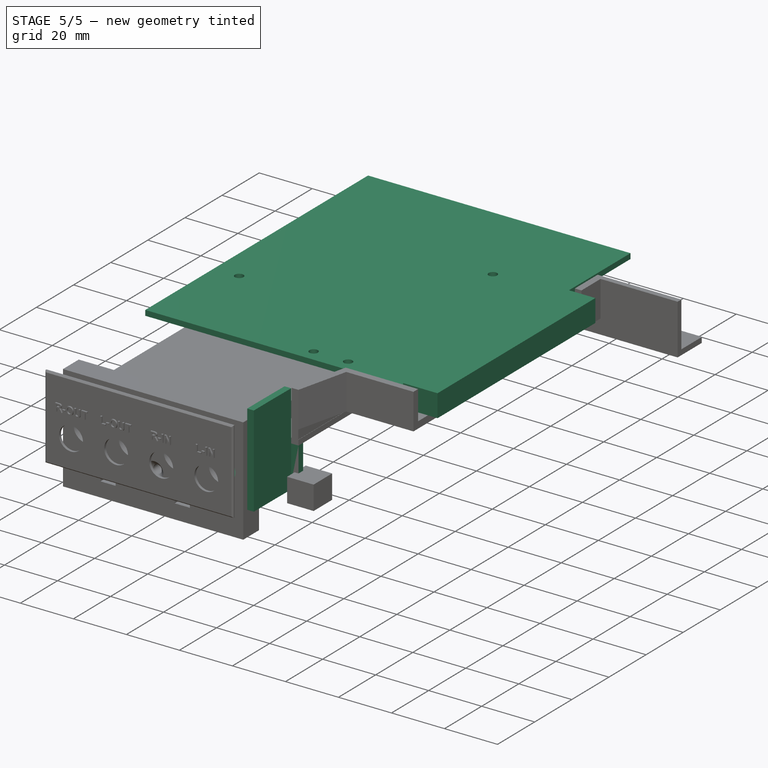
[diagram: stage 5 of 5 — iso view after this stage's code; geometry added in this stage tinted green]
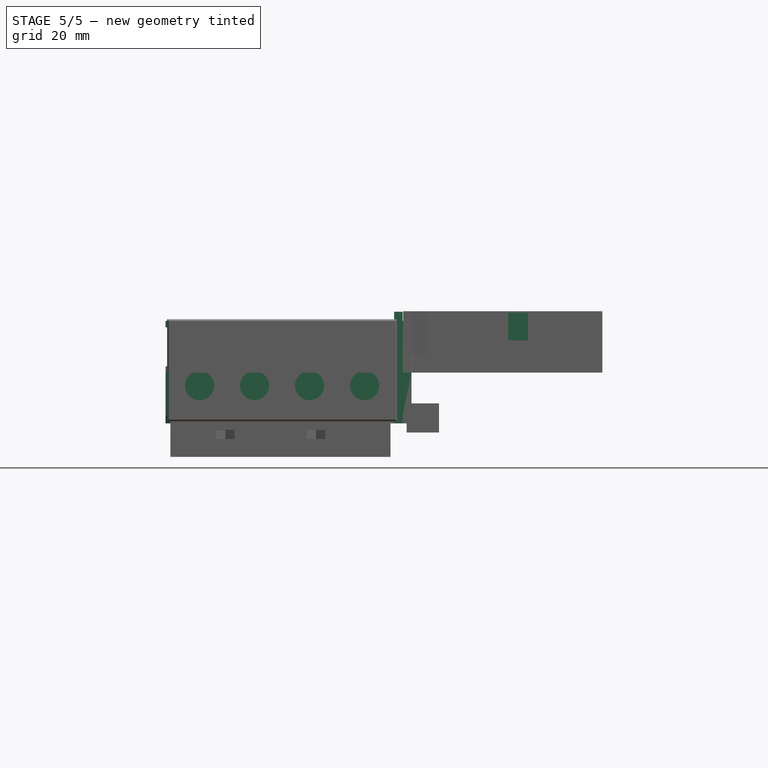
[diagram: stage 5 of 5 — front view after this stage's code; geometry added in this stage tinted green]
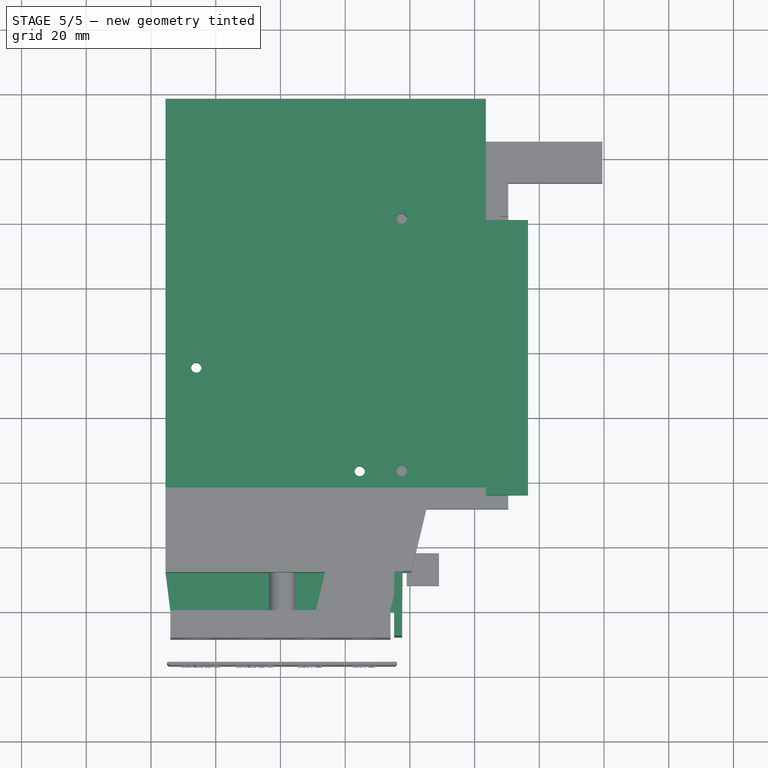
[diagram: stage 5 of 5 — top view after this stage's code; geometry added in this stage tinted green]
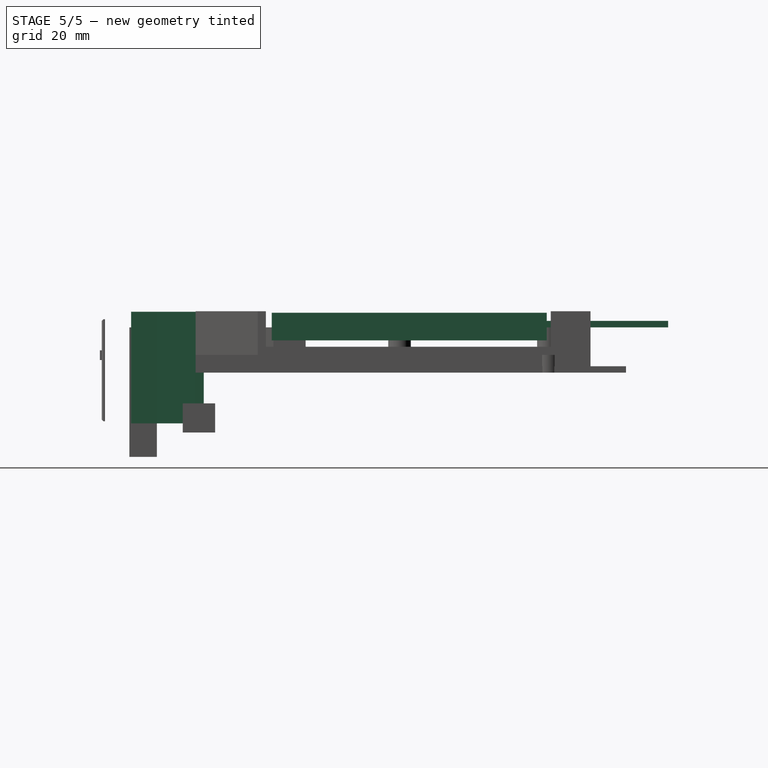
[diagram: stage 5 of 5 — right view after this stage's code; geometry added in this stage tinted green]
FEATURE [Part::Box] Box  label="card"
  Height = 2
  Length = 99
  Placement = pos=(4.5,38,43.5) rot=(0,0,1;0rad)
  Width = 120
FEATURE [Sketcher::SketchObject] Sketch005
  Placement = pos=(4.5,38,45.5) rot=(0,0,1;0rad)
  Support = -> Box [Face6]
  sketch-geometry (6):
    g0: Circle CenterX=60 CenterY=5 CenterZ=0 NormalX=0 NormalY=0 NormalZ=1 Radius=1.6
    g1: Circle CenterX=73 CenterY=5 CenterZ=0 NormalX=0 NormalY=0 NormalZ=1 Radius=1.6
    g2: LineSegment [constr] StartX=60 StartY=5 StartZ=0 EndX=73 EndY=5 EndZ=0
    g3: Circle CenterX=9.5 CenterY=37 CenterZ=0 NormalX=0 NormalY=0 NormalZ=1 Radius=1.6
    g4: Circle CenterX=73 CenterY=83 CenterZ=0 NormalX=0 NormalY=0 NormalZ=1 Radius=1.6
    g5: LineSegment [constr] StartX=73 StartY=5 StartZ=0 EndX=73 EndY=83 EndZ=0
  constraints (16):
    c: Radius(g0) = 1.6
    c: DistanceY(g-1,g0) = 5
    c: Coincident(g2,g0)
    c: Coincident(g2,g1)
    c: Horizontal(g2)
    c: Distance(g2) = 13
    c: DistanceX(g-1,g0) = 60
    c: Radius(g1) = 1.6
    c: Radius(g3) = 1.6
    c: DistanceX(g-1,g3) = 9.5
    c: DistanceY(g-1,g3) = 37
    c: DistanceY(g-1,g4) = 83
    c: Radius(g4) = 1.6
    c: Coincident(g5,g1)
    c: Coincident(g5,g4)
    c: Vertical(g5)
FEATURE [PartDesign::Pocket] Pocket002  label="card with holes"
  Length = 2
  Placement = pos=(4.5,38,43.5) rot=(0,0,1;0rad)
  Sketch = -> Sketch005
  Type = 0
FEATURE [Part::Fuse] Fusion004
  Base = -> Cut002
  Tool = -> Cylinder002
FEATURE [Part::Box] Box004  label="Cube002"
  Height = 8.5
  Length = 13
  Placement = pos=(103.5,35.5,39.5) rot=(0,0,1;0rad)
  Width = 85
FEATURE [Part::Fuse] Fusion007  label="card with connector"
  Base = -> Pocket002
  Tool = -> Box004
FEATURE [Part::Part2DObjectPython] DWire  # Draft 2D object (typed FeaturePython)
  ChamferSize = 0
  Closed = true
  End = (4.5,12,13.8153)
  FilletRadius = 0
  Length = 183.369
  MakeFace = true
  Points = (4) [(80.5,12,13.8153),(80.5,12,29.5),(4.5,12,29.5),(4.5,12,13.8153)]
  Start = (80.5,12,13.8153)
  Subdivisions = 0
FEATURE [Part::Extrusion] Extrude006
  Base = -> DWire
  Dir = (0,2.5,0)
  Solid = false
FEATURE [Part::Part2DObjectPython] DWire001  # Draft 2D object (typed FeaturePython)
  ChamferSize = 0
  Closed = true
  End = (4.5,12,13.8153)
  FilletRadius = 0
  Length = 168.952
  MakeFace = true
  Points = (4) [(77.7384,12,13.8153),(77.6199,-2.30459e-15,13.8153),(6,-2.29046e-15,13.8153),(4.5,12,13.8153)]
  Start = (77.7384,12,13.8153)
  Subdivisions = 0
FEATURE [Part::Extrusion] Extrude007
  Base = -> DWire001
  Dir = (0,0,2.5)
  Solid = false
FEATURE [Sketcher::SketchObject] Sketch011
  ExternalGeometry = -> [Extrude007]
  Placement = pos=(3e-12,0,16.3153) rot=(0,0,1;0rad)
  Support = -> Extrude007 [Face6]
  sketch-geometry (6):
    g0: LineSegment StartX=77.7384 StartY=12 StartZ=0 EndX=77.6199 EndY=9e-12 EndZ=0
    g1: LineSegment StartX=77.6199 StartY=9e-12 StartZ=0 EndX=77.6199 EndY=-7.95428 EndZ=0
    g2: LineSegment StartX=77.6199 StartY=-7.95428 StartZ=0 EndX=75.1197 EndY=-7.95428 EndZ=0
    g3: LineSegment StartX=75.1197 StartY=-7.95428 StartZ=0 EndX=75.1197 EndY=0 EndZ=0
    g4: LineSegment StartX=75.1197 StartY=0 StartZ=0 EndX=75.2383 EndY=12 EndZ=0
    g5: LineSegment StartX=75.2383 StartY=12 StartZ=0 EndX=77.7384 EndY=12 EndZ=0
  constraints (15):
    c: Coincident(g-3,g0)
    c: Coincident(g0,g-3)
    c: Coincident(g0,g1)
    c: Vertical(g1)
    c: Coincident(g1,g2)
    c: Horizontal(g2)
    c: Coincident(g2,g3)
    c: PointOnObject(g3,g-1)
    c: Vertical(g3)
    c: Coincident(g3,g4)
    c: Coincident(g4,g5)
    c: Coincident(g5,g0)
    c: Horizontal(g5)
    c: Distance(g4,g-3) = 2.5
    c: Parallel(g-3,g4)
FEATURE [PartDesign::Pad] Pad006
  Length = 32
  Length2 = 2.5
  Sketch = -> Sketch011
  Type = 4
FEATURE [Part::MultiFuse] Fusion010  label="lower shield"
  Shapes = -> [Extrude006,Pad006]
FEATURE [Part::MultiFuse] Fusion011
  Shapes = -> [Fusion010,Cylinder007]
FEATURE [Part::Part2DObjectPython] Polygon007  # Draft 2D object (typed FeaturePython)
  ChamferSize = 0
  DrawMode = 0
  FacesNumber = 6
  FilletRadius = 0
  MakeFace = true
  Placement = pos=(40.5,14.5,18) rot=(-1,0,0;1.5708rad)
  Radius = 3.3
  Support = -> Fusion011
FEATURE [Part::Extrusion] Extrude009
  Base = -> Polygon007
  Dir = (0,-2.8,0)
  Solid = false
FEATURE [Part::Cut] Cut012
  Base = -> Fusion011
  Tool = -> Cylinder008
FEATURE [Part::Cut] Cut013
  Base = -> Cut012
  Tool = -> Extrude009
FEATURE [Sketcher::SketchObject] Sketch016
  ExternalGeometry = -> [Cut013]
  Placement = pos=(4.5,0,0) rot=(0.57735,-0.57735,-0.57735;2.0944rad)
  Support = -> Cut013 [Face6]
  sketch-geometry (7):
    g0: Circle CenterX=40.5 CenterY=33.5 CenterZ=0 NormalX=0 NormalY=0 NormalZ=1 Radius=1.6
    g1: LineSegment [constr] StartX=34.5392 StartY=33.5 StartZ=0 EndX=47.8754 EndY=33.5 EndZ=0
    g2: GeomPoint [constr] X=40.5 Y=33.5 Z=0
    g3: ArcOfCircle CenterX=40.5 CenterY=33.5 CenterZ=0 NormalX=0 NormalY=0 NormalZ=1 Radius=4 StartAngle=0 EndAngle=2.23646
    g4: LineSegment StartX=38.0297 StartY=36.646 StartZ=0 EndX=28.929 EndY=29.5 EndZ=0
    g5: LineSegment StartX=28.929 StartY=29.5 StartZ=0 EndX=44.5 EndY=29.5 EndZ=0
    g6: LineSegment StartX=44.5 StartY=29.5 StartZ=0 EndX=44.5 EndY=33.5 EndZ=0
  constraints (16):
    c: DistanceX(g0) = 40.5
    c: Radius(g0) = 1.6
    c: DistanceY(g-3,g0) = 4
    c: Horizontal(g1)
    c: PointOnObject(g2,g1)
    c: Coincident(g0,g2)
    c: PointOnObject(g3,g1)
    c: Radius(g3) = 4
    c: Coincident(g0,g3)
    c: Tangent(g3,g4) = -1.5708
    c: Coincident(g4,g5)
    c: PointOnObject(g5,g-3)
    c: Horizontal(g5)
    c: Coincident(g5,g6)
    c: Coincident(g6,g3)
    c: Vertical(g6)
FEATURE [PartDesign::Pad] Pad009
  Length = 5
  Length2 = 100
  Reversed = true
  Sketch = -> Sketch016
  Type = 0
FEATURE [Part::Part2DObjectPython] Polygon008  # Draft 2D object (typed FeaturePython)
  ChamferSize = 0
  DrawMode = 0
  FacesNumber = 6
  FilletRadius = 0
  MakeFace = true
  Placement = pos=(40.5,18.5,24.5) rot=(1,0,0;3.14159rad)
  Radius = 3.3
  Support = -> Pad009
FEATURE [Part::Extrusion] Extrude010
  Base = -> Polygon008
  Dir = (0,0,2.8)
  Solid = false
FEATURE [Part::Cut] Cut015  label="lower shield001 - broken"
  Base = -> Pad009
  Tool = -> Extrude010
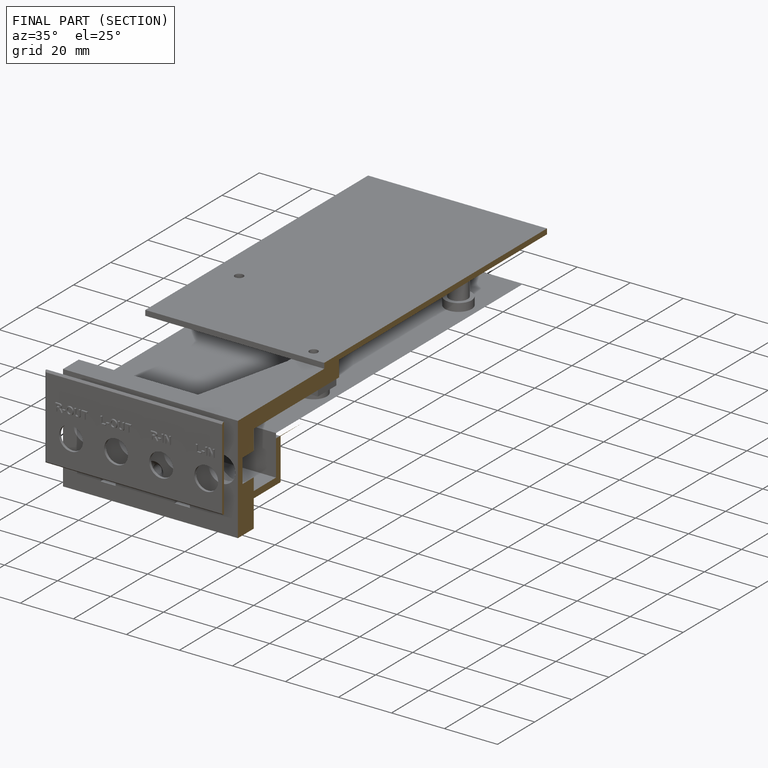
[diagram: finished part — half-section view (interior)]
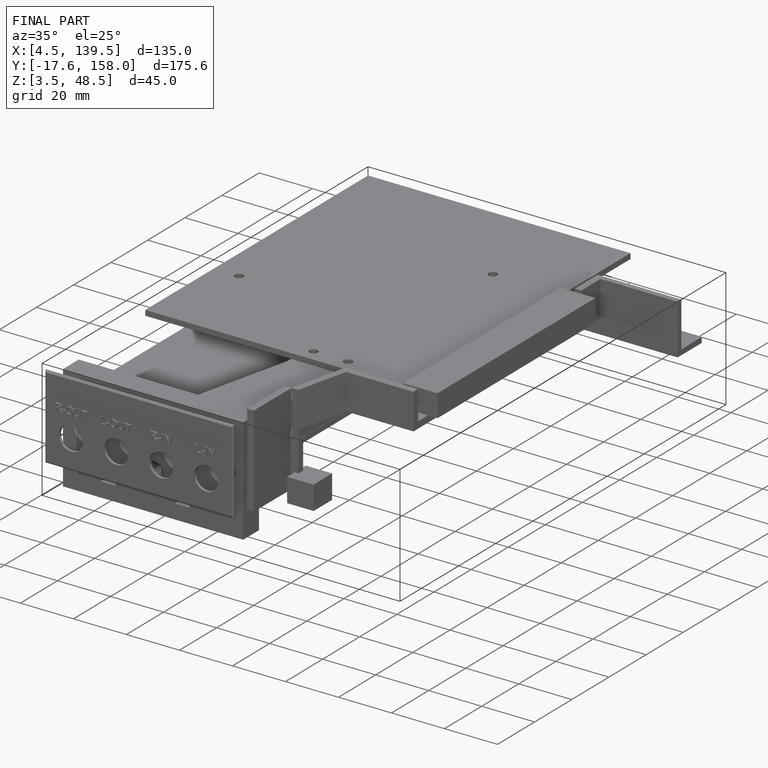
[diagram: finished part — iso view with bounding-box wireframe]
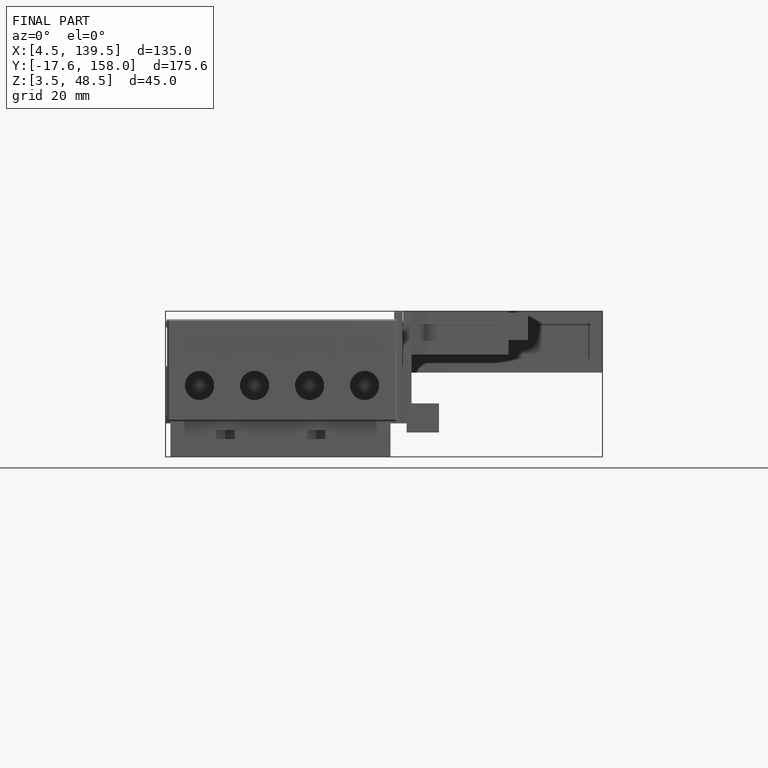
[diagram: finished part — front view with bounding-box wireframe]
